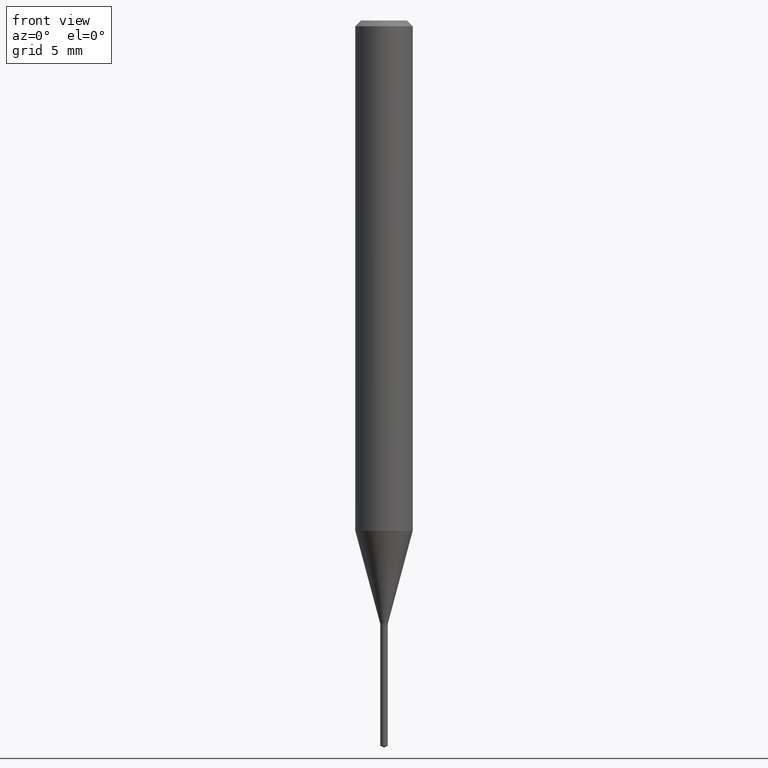
[diagram: clean part render]
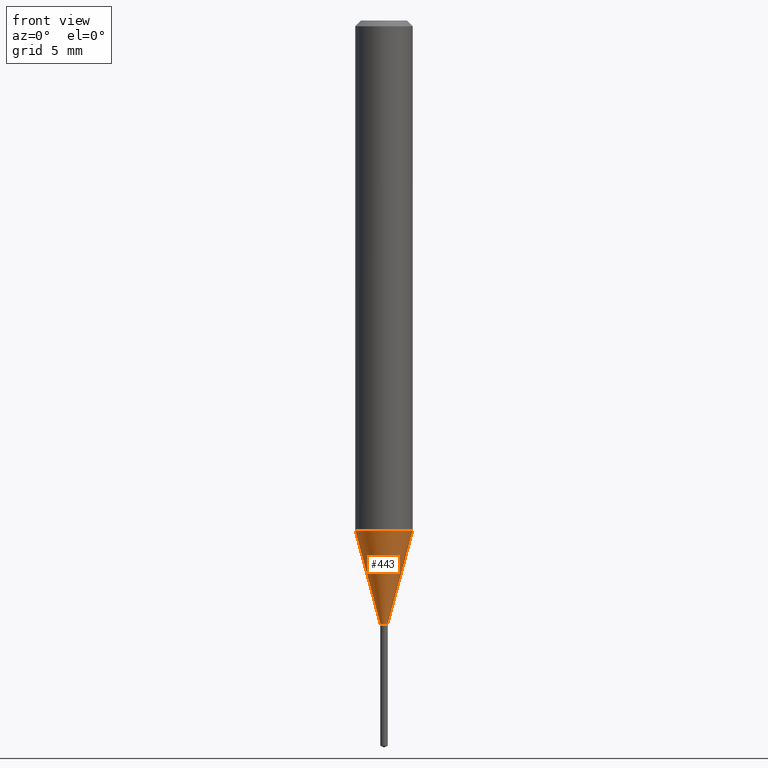
[diagram: same view with one face highlighted and labeled with its STEP entity id]
A machine part, front view. The second image highlights one B-rep face of the part: STEP entity #443.
In plain terms, the highlighted conical surface has half-angle 15 deg.
Its self-contained STEP definition (entity closure, byte-faithful):
#5 = ORIENTED_EDGE ( 'NONE', *, *, #437, .T. ) ;
#7 = EDGE_LOOP ( 'NONE', ( #365, #5, #188, #200 ) ) ;
#12 = LINE ( 'NONE', #203, #266 ) ;
#17 = LINE ( 'NONE', #133, #434 ) ;
#58 = VERTEX_POINT ( 'NONE', #377 ) ;
#75 = EDGE_CURVE ( 'NONE', #301, #298, #17, .T. ) ;
#84 = DIRECTION ( 'NONE',  ( 1.000000000000000000, -6.982962677686256455E-15, 0.000000000000000000 ) ) ;
#94 = CARTESIAN_POINT ( 'NONE',  ( 0.007700000000000000247, -4.389490339193602123E-15, -1.241799999999999793 ) ) ;
#103 = CARTESIAN_POINT ( 'NONE',  ( 3.036783163520702277E-29, -4.335721526575417446E-15, -1.241799999999999793 ) ) ;
#116 = CARTESIAN_POINT ( 'NONE',  ( 3.036783163520702277E-29, -4.335721526575417446E-15, -1.241799999999999793 ) ) ;
#117 = VERTEX_POINT ( 'NONE', #94 ) ;
#125 = DIRECTION ( 'NONE',  ( -0.2588190451025213501, 5.211531920934551042E-15, 0.9659258262890682012 ) ) ;
#133 = CARTESIAN_POINT ( 'NONE',  ( -0.007700000000000000247, -4.281009735921889447E-15, -1.241799999999999793 ) ) ;
#142 = DIRECTION ( 'NONE',  ( -2.445468806185136597E-29, 3.491481338843145583E-15, 1.000000000000000000 ) ) ;
#167 = DIRECTION ( 'NONE',  ( 0.2588190451025213501, 1.565188264969621968E-15, 0.9659258262890682012 ) ) ;
#188 = ORIENTED_EDGE ( 'NONE', *, *, #241, .T. ) ;
#191 = DIRECTION ( 'NONE',  ( -2.445468806185136597E-29, 3.491481338843145583E-15, 1.000000000000000000 ) ) ;
#200 = ORIENTED_EDGE ( 'NONE', *, *, #311, .F. ) ;
#203 = CARTESIAN_POINT ( 'NONE',  ( 0.007700000000000000247, -4.389490339193602123E-15, -1.241799999999999793 ) ) ;
#218 = FACE_OUTER_BOUND ( 'NONE', #7, .T. ) ;
#241 = EDGE_CURVE ( 'NONE', #117, #58, #12, .T. ) ;
#260 = AXIS2_PLACEMENT_3D ( 'NONE', #116, #458, #418 ) ;
#266 = VECTOR ( 'NONE', #167, 39.37007874015747433 ) ;
#296 = AXIS2_PLACEMENT_3D ( 'NONE', #103, #191, #84 ) ;
#298 = VERTEX_POINT ( 'NONE', #439 ) ;
#301 = VERTEX_POINT ( 'NONE', #482 ) ;
#311 = EDGE_CURVE ( 'NONE', #298, #58, #314, .T. ) ;
#314 = CIRCLE ( 'NONE', #375, 0.05905000000000013710 ) ;
#362 = DIRECTION ( 'NONE',  ( 1.000000000000000000, -6.982962677686264344E-15, 0.000000000000000000 ) ) ;
#364 = CARTESIAN_POINT ( 'NONE',  ( 2.568131543195755093E-29, -3.666611218300530537E-15, -1.050159191031337924 ) ) ;
#365 = ORIENTED_EDGE ( 'NONE', *, *, #75, .F. ) ;
#375 = AXIS2_PLACEMENT_3D ( 'NONE', #364, #142, #362 ) ;
#377 = CARTESIAN_POINT ( 'NONE',  ( 0.05905000000000013710, -4.078955164417905458E-15, -1.050159191031337924 ) ) ;
#418 = DIRECTION ( 'NONE',  ( 1.000000000000000000, -6.982962677686256455E-15, 0.000000000000000000 ) ) ;
#434 = VECTOR ( 'NONE', #125, 39.37007874015747433 ) ;
#435 = CIRCLE ( 'NONE', #296, 0.007700000000000000247 ) ;
#437 = EDGE_CURVE ( 'NONE', #301, #117, #435, .T. ) ;
#439 = CARTESIAN_POINT ( 'NONE',  ( -0.05905000000000013710, -3.247035732834190256E-15, -1.050159191031337924 ) ) ;
#443 = ADVANCED_FACE ( 'NONE', ( #218 ), #471, .T. ) ;
#458 = DIRECTION ( 'NONE',  ( -2.445468806185136597E-29, 3.491481338843145583E-15, 1.000000000000000000 ) ) ;
#471 = CONICAL_SURFACE ( 'NONE', #260, 0.007700000000000000247, 0.2617993877991500740 ) ;
#482 = CARTESIAN_POINT ( 'NONE',  ( -0.007700000000000000247, -4.284152069126848942E-15, -1.241799999999999793 ) ) ;